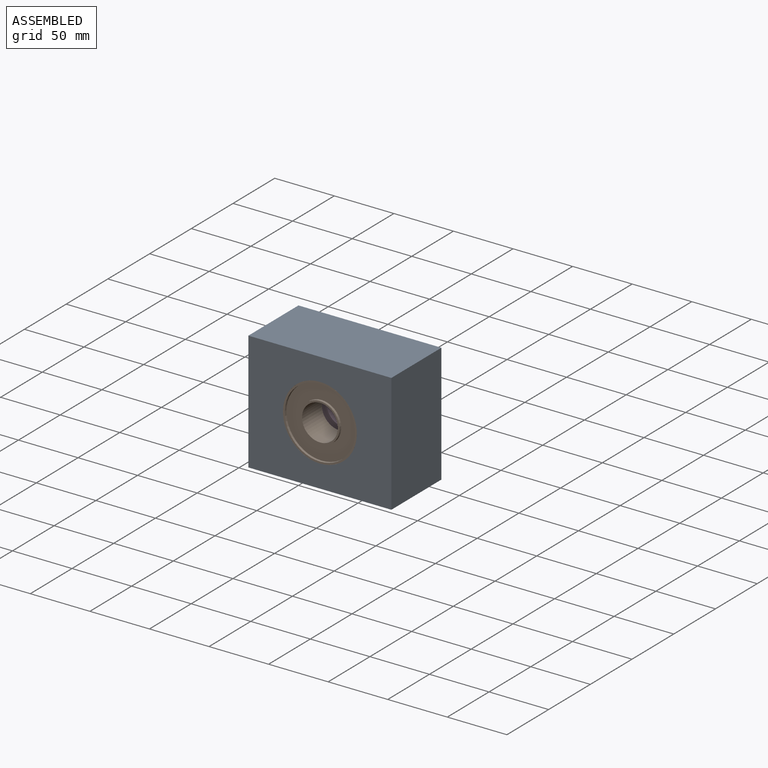
[diagram: assembled view]
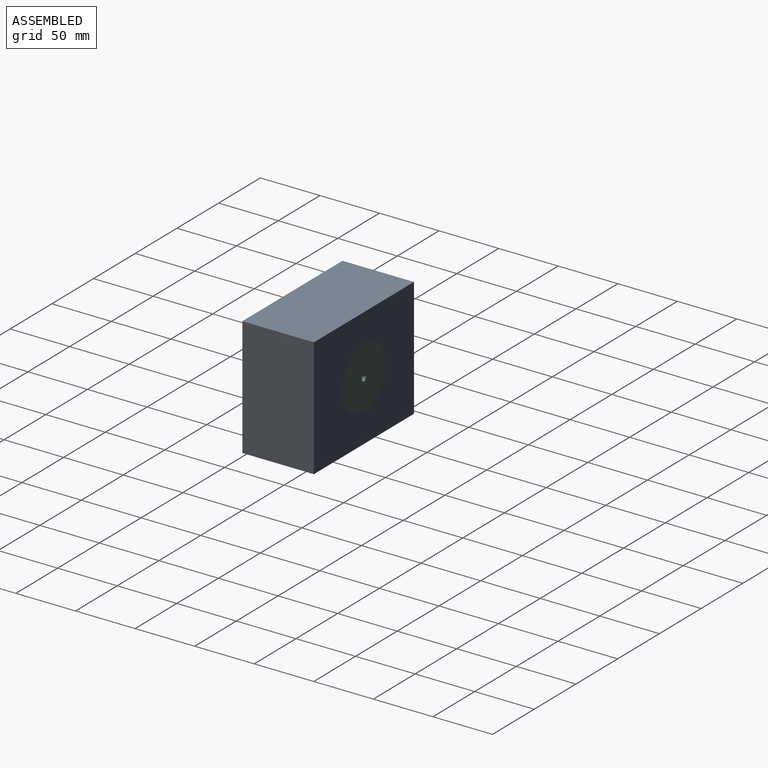
[diagram: assembled view, second angle]
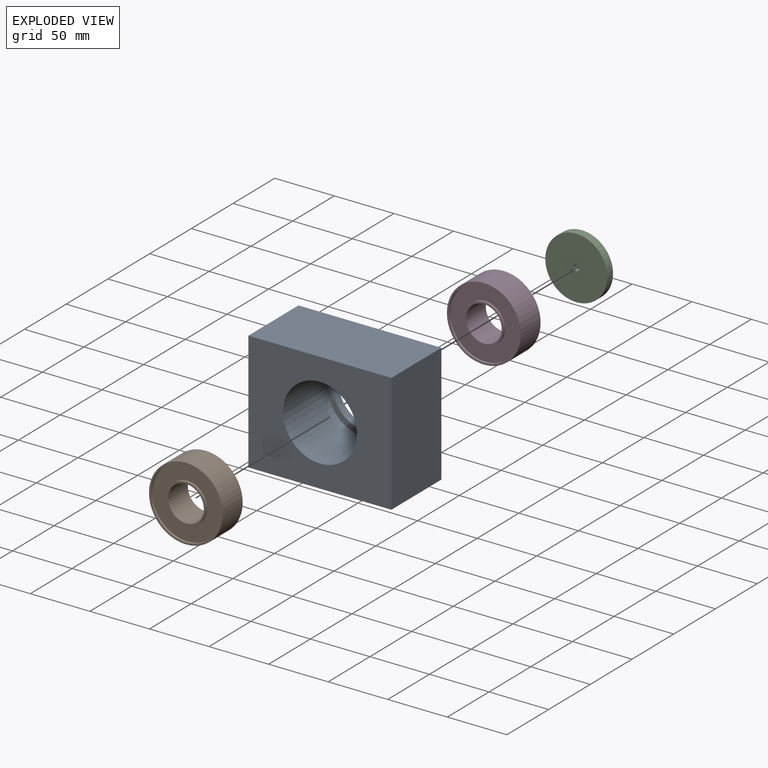
[diagram: exploded view]
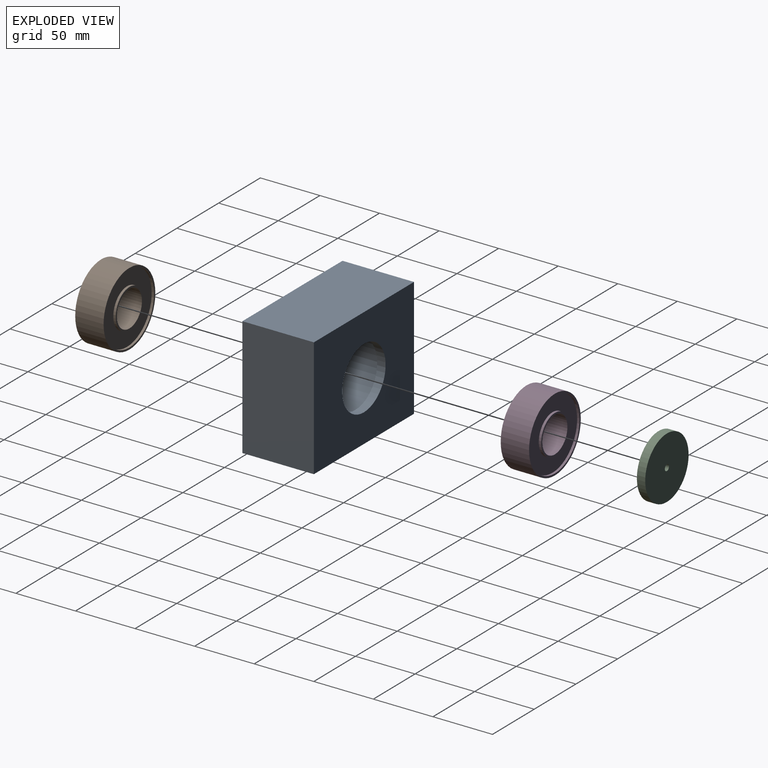
[diagram: exploded view, second angle]
ASSEMBLY  parts=4 mates=3
PART A: 9 faces, bbox 120x60x100 mm
  f0: cylinder r=26mm len=52mm, axis (0,1,0), area 1143.5mm2, adj f6,f8
  f1: plane 100x60mm, normal (1,0,0), area 6000mm2, adj f2,f4,f5,f6
  f2: plane 120x60mm, normal (0,0,1), area 7200mm2, adj f1,f3,f5,f6
  f3: plane 100x60mm, normal (-1,0,0), area 6000mm2, adj f2,f4,f5,f6
  f4: plane 120x60mm, normal (0,0,-1), area 7200mm2, adj f1,f3,f5,f6
  f5: plane 120x100mm, normal (0,-1,0), area 8980.9mm2, adj f1,f2,f3,f4,f7
  f6: plane 120x100mm, normal (0,1,0), area 9876.3mm2, adj f0,f1,f2,f3,f4
  f7: cylinder r=31mm len=62mm, axis (0,-1,0), area 10323.3mm2, adj f5,f8
  f8: plane 62x62mm, normal (0,-1,0), area 895.4mm2, adj f0,f7
PART B: 12 faces, bbox 62x23.8x62 mm
  f0: plane 33x33mm, normal (0,1,0), area 148.4mm2, adj f5,f9
  f1: plane 33x33mm, normal (0,-1,0), area 148.4mm2, adj f5,f6
  f2: cylinder r=31mm len=62mm, axis (0,1,0), area 4635.7mm2, adj f3,f4
  f3: plane 62x62mm, normal (0,-1,0), area 285.1mm2, adj f2,f7
  f4: plane 62x62mm, normal (0,1,0), area 285.1mm2, adj f2,f10
  f5: cylinder r=15mm len=30mm, axis (0,-1,0), area 2243.1mm2, adj f0,f1
  f6: cylinder r=16.5mm len=33mm, axis (0,-1,0), area 207.3mm2, adj f1,f8
  f7: cylinder r=29.5mm len=59mm, axis (0,-1,0), area 370.7mm2, adj f3,f8
  f8: plane 59x59mm, normal (0,-1,0), area 1878.7mm2, adj f6,f7
  f9: cylinder r=16.5mm len=33mm, axis (0,1,0), area 207.3mm2, adj f0,f11
  f10: cylinder r=29.5mm len=59mm, axis (0,1,0), area 370.7mm2, adj f4,f11
  f11: plane 59x59mm, normal (0,1,0), area 1878.7mm2, adj f9,f10
PART C: 4 faces, bbox 52x7x52 mm
  f0: cylinder r=2.5mm len=7mm, axis (0,1,0), area 110mm2, adj f2,f3
  f1: cylinder r=26mm len=52mm, axis (0,1,0), area 1143.5mm2, adj f2,f3
  f2: plane 52x52mm, normal (0,-1,0), area 2104.1mm2, adj f0,f1
  f3: plane 52x52mm, normal (0,1,0), area 2104.1mm2, adj f0,f1
PART D: same geometry as B
PLACE A t=(118.17,9.76,-115.58)mm
PLACE B t=(118.17,-26.44,-115.58)mm
PLACE C t=(118.17,9.76,-115.58)mm
PLACE D t=(118.17,2.76,-115.58)mm
MATE fastened A.f7 <-> D.f5  axis (0,-1,0) through (118.17,2.76,-115.58)mm
MATE fastened A.f0 <-> C.f1  axis (0,1,0) through (118.17,9.76,-115.58)mm
MATE fastened B.f2 <-> A.f7  axis (0,1,0) through (118.17,-50.24,-115.58)mm
